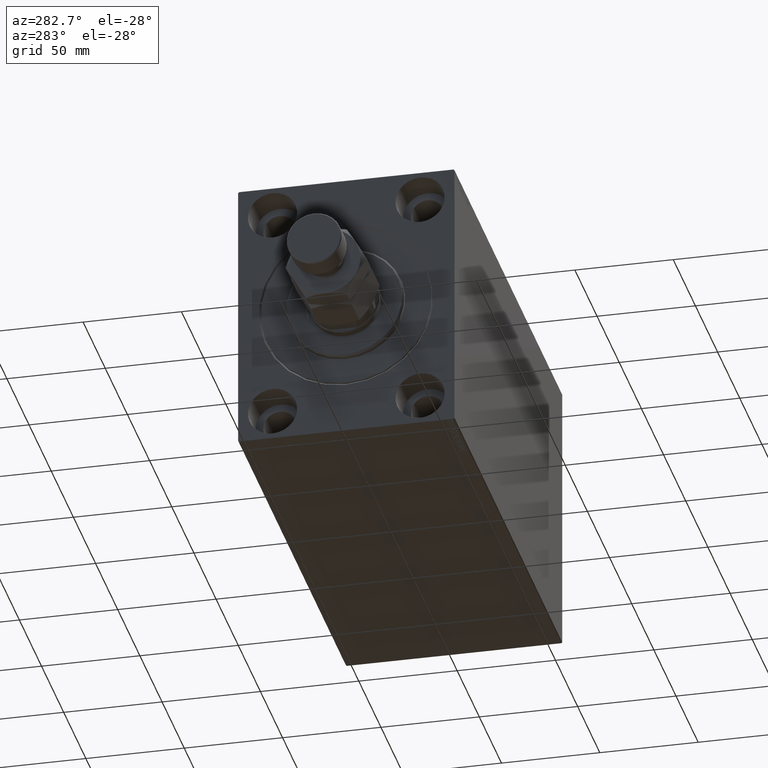
[diagram: clean part render]
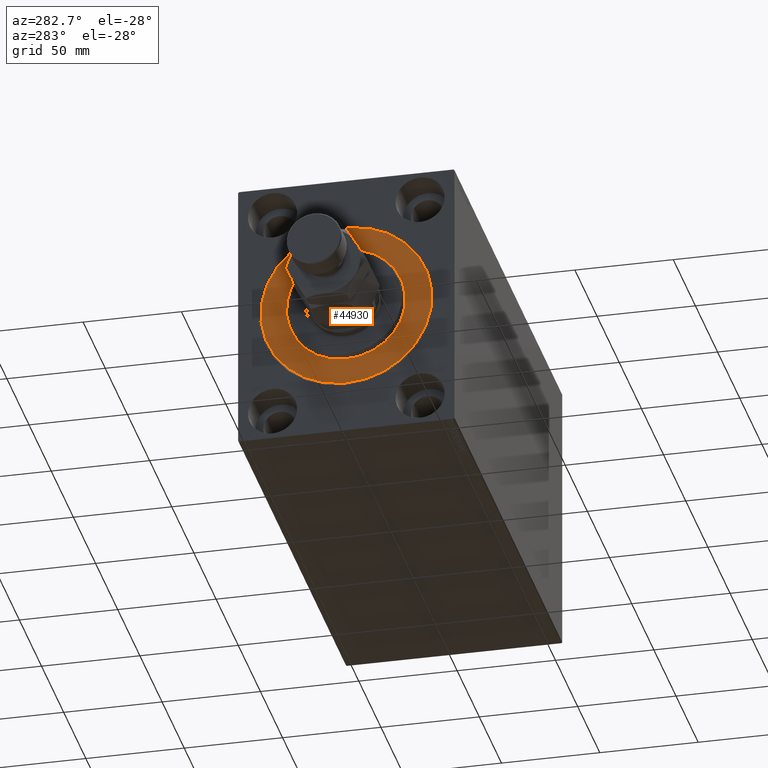
[diagram: same view with one face highlighted and labeled with its STEP entity id]
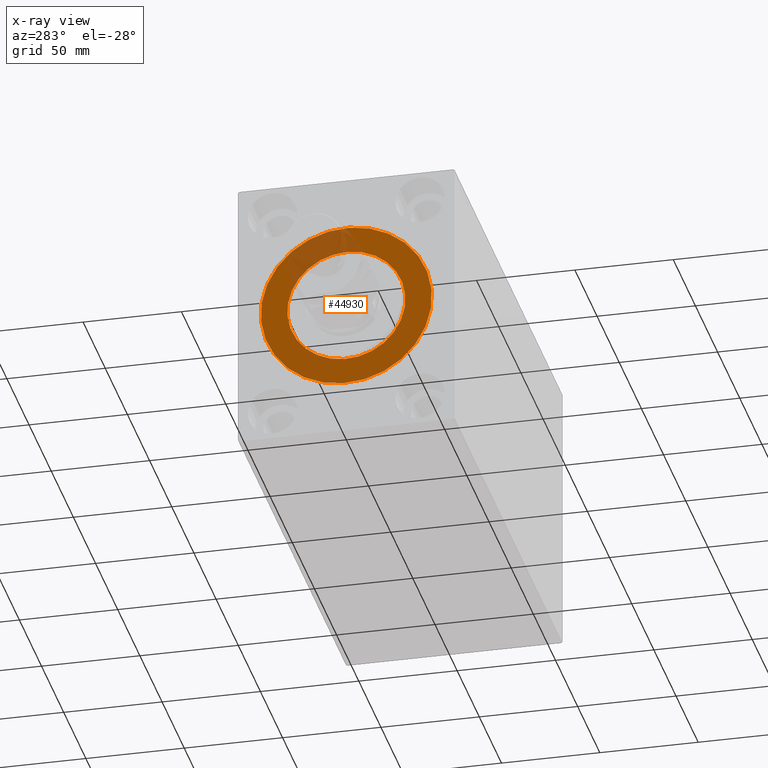
[diagram: x-ray of the same camera — body ghosted, the highlighted face saturated]
A machine part, auxiliary view. The second image highlights one B-rep face of the part: STEP entity #44930.
The next image is the same camera in x-ray: the body ghosted, the highlighted face saturated — about 16% of this face is hidden behind the body in this view.
In plain terms, the highlighted planar face has unit normal (1, 0, -0).
Its self-contained STEP definition (entity closure, byte-faithful):
#2107 = EDGE_CURVE ( 'NONE', #44566, #36458, #44973, .T. ) ;
#2416 = VERTEX_POINT ( 'NONE', #4319 ) ;
#4142 = CARTESIAN_POINT ( 'NONE',  ( 0.000000000000000000, 5.327213576290986044E-15, 43.50000000000000000 ) ) ;
#4319 = CARTESIAN_POINT ( 'NONE',  ( 0.000000000000000000, 0.000000000000000000, -43.50000000000000000 ) ) ;
#5258 = EDGE_LOOP ( 'NONE', ( #40657, #29809 ) ) ;
#5273 = CARTESIAN_POINT ( 'NONE',  ( 0.000000000000000000, 0.000000000000000000, 0.000000000000000000 ) ) ;
#6438 = DIRECTION ( 'NONE',  ( 0.000000000000000000, 0.000000000000000000, 1.000000000000000000 ) ) ;
#7119 = FACE_BOUND ( 'NONE', #39169, .T. ) ;
#7721 = DIRECTION ( 'NONE',  ( 0.000000000000000000, 0.000000000000000000, 1.000000000000000000 ) ) ;
#9222 = DIRECTION ( 'NONE',  ( -1.000000000000000000, 0.000000000000000000, 0.000000000000000000 ) ) ;
#9988 = DIRECTION ( 'NONE',  ( 1.000000000000000000, -0.000000000000000000, 0.000000000000000000 ) ) ;
#11998 = CARTESIAN_POINT ( 'NONE',  ( 0.000000000000000000, 0.000000000000000000, 0.000000000000000000 ) ) ;
#12666 = AXIS2_PLACEMENT_3D ( 'NONE', #11998, #9222, #36845 ) ;
#12968 = ORIENTED_EDGE ( 'NONE', *, *, #2107, .F. ) ;
#13175 = ORIENTED_EDGE ( 'NONE', *, *, #32668, .F. ) ;
#14036 = PLANE ( 'NONE',  #30467 ) ;
#15869 = DIRECTION ( 'NONE',  ( 0.000000000000000000, 0.000000000000000000, -1.000000000000000000 ) ) ;
#17037 = DIRECTION ( 'NONE',  ( -1.000000000000000000, 0.000000000000000000, 0.000000000000000000 ) ) ;
#19116 = CIRCLE ( 'NONE', #41915, 43.50000000000000000 ) ;
#19140 = CARTESIAN_POINT ( 'NONE',  ( 0.000000000000000000, 0.000000000000000000, 30.00000000000000000 ) ) ;
#23798 = EDGE_CURVE ( 'NONE', #2416, #32224, #19116, .T. ) ;
#24170 = CARTESIAN_POINT ( 'NONE',  ( 0.000000000000000000, 0.000000000000000000, 0.000000000000000000 ) ) ;
#25897 = DIRECTION ( 'NONE',  ( -1.000000000000000000, 0.000000000000000000, 0.000000000000000000 ) ) ;
#26680 = DIRECTION ( 'NONE',  ( 1.000000000000000000, -0.000000000000000000, 0.000000000000000000 ) ) ;
#27841 = FACE_OUTER_BOUND ( 'NONE', #5258, .T. ) ;
#29370 = CARTESIAN_POINT ( 'NONE',  ( 0.000000000000000000, 0.000000000000000000, 0.000000000000000000 ) ) ;
#29809 = ORIENTED_EDGE ( 'NONE', *, *, #30242, .F. ) ;
#30242 = EDGE_CURVE ( 'NONE', #32224, #2416, #42077, .T. ) ;
#30467 = AXIS2_PLACEMENT_3D ( 'NONE', #24170, #17037, #6438 ) ;
#32224 = VERTEX_POINT ( 'NONE', #4142 ) ;
#32668 = EDGE_CURVE ( 'NONE', #36458, #44566, #36980, .T. ) ;
#34666 = AXIS2_PLACEMENT_3D ( 'NONE', #5273, #26680, #15869 ) ;
#34852 = DIRECTION ( 'NONE',  ( 0.000000000000000000, 0.000000000000000000, -1.000000000000000000 ) ) ;
#36458 = VERTEX_POINT ( 'NONE', #19140 ) ;
#36845 = DIRECTION ( 'NONE',  ( 0.000000000000000000, 0.000000000000000000, 1.000000000000000000 ) ) ;
#36980 = CIRCLE ( 'NONE', #39185, 30.00000000000000000 ) ;
#39169 = EDGE_LOOP ( 'NONE', ( #13175, #12968 ) ) ;
#39185 = AXIS2_PLACEMENT_3D ( 'NONE', #42209, #9988, #34852 ) ;
#40657 = ORIENTED_EDGE ( 'NONE', *, *, #23798, .F. ) ;
#41915 = AXIS2_PLACEMENT_3D ( 'NONE', #29370, #25897, #7721 ) ;
#42077 = CIRCLE ( 'NONE', #12666, 43.50000000000000000 ) ;
#42209 = CARTESIAN_POINT ( 'NONE',  ( 0.000000000000000000, 0.000000000000000000, 0.000000000000000000 ) ) ;
#43652 = CARTESIAN_POINT ( 'NONE',  ( 0.000000000000000000, 3.673940397442059178E-15, -30.00000000000000000 ) ) ;
#44566 = VERTEX_POINT ( 'NONE', #43652 ) ;
#44930 = ADVANCED_FACE ( 'NONE', ( #7119, #27841 ), #14036, .F. ) ;
#44973 = CIRCLE ( 'NONE', #34666, 30.00000000000000000 ) ;